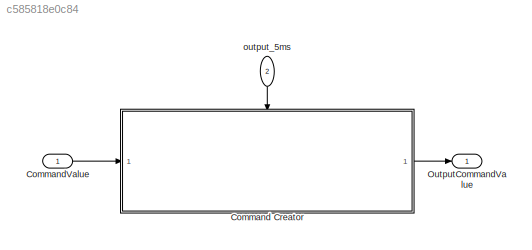
MODEL slx_c585818e0c84
KIND model
CONFIG AbsTol = auto
CONFIG EnableMultiTasking = off
CONFIG FixedStep = 0.005
CONFIG MaxStep = auto
CONFIG MinStep = auto
CONFIG RelTol = 1e-3
CONFIG SampleTimeConstraint = Unconstrained
CONFIG SolverName = FixedStepDiscrete
CONFIG StartTime = 0.0
CONFIG StopTime = 10.0
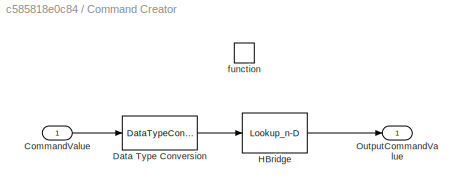
BLOCK [SubSystem] Command Creator
  SystemSampleTime = 0.005
  TreatAsAtomicUnit = on
BLOCK [Inport] Command Creator/CommandValue
BLOCK [DataTypeConversion] Command Creator/Data Type Conversion
  OutDataTypeStr = single
  RndMeth = Floor
  SaturateOnIntegerOverflow = off
BLOCK [Lookup_n-D] Command Creator/HBridge
  BreakpointsForDimension1 = TPSPercentBkpt
  BreakpointsForDimension1DataTypeStr = single
  DataSpecification = Lookup table object
  IndexSearchMethod = Linear search
  InputPortMap = u0
  InternalRulePriority = Speed
  InterpMethod = Nearest
  LookupTableObject = HBridge
  NumberOfTableDimensions = 1
  OutDataTypeStr = Inherit: Inherit from 'Table data'
  RndMeth = Simplest
  Table = TPSPercentTbl
  TableDataTypeStr = single
BLOCK [Outport] Command Creator/OutputCommandValue
BLOCK [TriggerPort] Command Creator/function
  PortDimensions = 1
  SampleTime = Ts
  StatesWhenEnabling = held
  TriggerType = function-call
  VariantControl = (inherit)
BLOCK [Inport] CommandValue
  OutDataTypeStr = single
  PortDimensions = 1
  SamplingMode = Sample based
  SignalType = real
BLOCK [Outport] OutputCommandValue
  OutDataTypeStr = int16
  PortDimensions = 1
  SamplingMode = Sample based
  SignalType = real
BLOCK [Inport] output_5ms
  NameLocation = left
  OutputFunctionCall = on
  Port = 2
LINE Command Creator/CommandValue:1 -> Command Creator/Data Type Conversion:1
LINE Command Creator/Data Type Conversion:1 -> Command Creator/HBridge:1
LINE Command Creator/HBridge:1 -> Command Creator/OutputCommandValue:1
LINE Command Creator:1 -> OutputCommandValue:1
LINE CommandValue:1 -> Command Creator:1
LINE output_5ms:1 -> Command Creator:trigger
